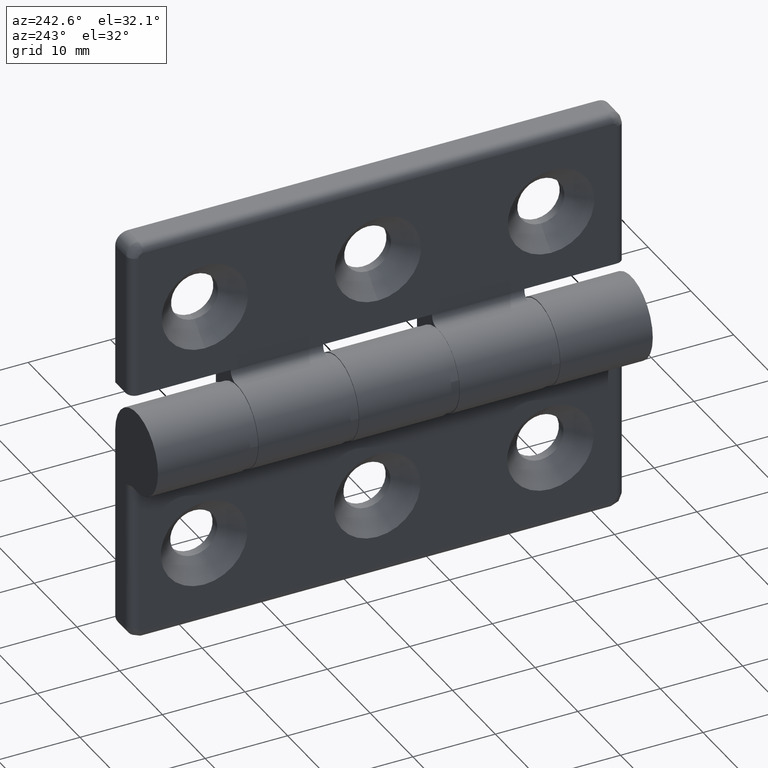
[diagram: clean part render]
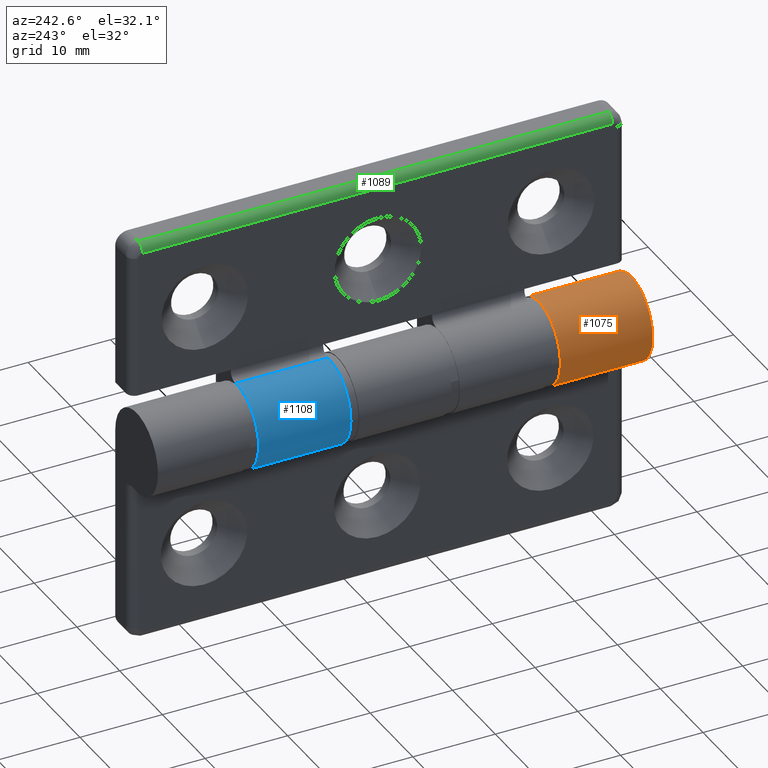
[diagram: same view with three faces highlighted in distinct colors, each labeled with its STEP entity id]
A machine part, auxiliary view with three faces highlighted in distinct colors.
Their STEP definitions:

[orange] entity #1075 — the highlighted cylindrical surface (partial cylindrical patch) has radius 5 mm, axis along (0, 1, 0).
#108=B_SPLINE_CURVE_WITH_KNOTS('',3,(#1638,#1639,#1640,#1641,#1642),
 .UNSPECIFIED.,.F.,.F.,(4,1,4),(1.24012537524974,1.25308954174523,1.34489635162472),
 .UNSPECIFIED.);
#144=FACE_OUTER_BOUND('',#220,.T.);
#220=EDGE_LOOP('',(#865,#866,#867,#868,#869));
#268=LINE('',#1586,#345);
#301=LINE('',#1829,#378);
#345=VECTOR('',#1249,10.2);
#378=VECTOR('',#1348,11.2);
#443=CIRCLE('',#1146,5.);
#452=CIRCLE('',#1168,5.);
#485=VERTEX_POINT('',#1583);
#486=VERTEX_POINT('',#1585);
#489=VERTEX_POINT('',#1627);
#521=VERTEX_POINT('',#1808);
#528=VERTEX_POINT('',#1827);
#585=EDGE_CURVE('',#485,#486,#268,.T.);
#589=EDGE_CURVE('',#489,#485,#108,.T.);
#635=EDGE_CURVE('',#489,#521,#443,.T.);
#645=EDGE_CURVE('',#521,#528,#301,.T.);
#657=EDGE_CURVE('',#528,#486,#452,.T.);
#865=ORIENTED_EDGE('',*,*,#589,.F.);
#866=ORIENTED_EDGE('',*,*,#635,.T.);
#867=ORIENTED_EDGE('',*,*,#645,.T.);
#868=ORIENTED_EDGE('',*,*,#657,.T.);
#869=ORIENTED_EDGE('',*,*,#585,.F.);
#1031=CYLINDRICAL_SURFACE('',#1170,5.);
#1075=ADVANCED_FACE('',(#144),#1031,.T.);
#1146=AXIS2_PLACEMENT_3D('',#1810,#1333,#1334);
#1168=AXIS2_PLACEMENT_3D('',#1858,#1390,#1391);
#1170=AXIS2_PLACEMENT_3D('',#1861,#1395,#1396);
#1249=DIRECTION('',(0.,1.,0.));
#1333=DIRECTION('center_axis',(0.,1.,0.));
#1334=DIRECTION('ref_axis',(-1.,0.,0.));
#1348=DIRECTION('',(0.,1.,0.));
#1390=DIRECTION('center_axis',(-6.54399919421063E-32,-1.,-1.26306652853828E-16));
#1391=DIRECTION('ref_axis',(-1.,0.,0.));
#1395=DIRECTION('center_axis',(0.,1.,0.));
#1396=DIRECTION('ref_axis',(-1.,0.,0.));
#1583=CARTESIAN_POINT('',(0.416666666666663,1.,-4.98260864295892));
#1585=CARTESIAN_POINT('',(0.416666666666663,11.2,-4.98260864295892));
#1586=CARTESIAN_POINT('',(0.416666666666663,0.,-4.98260864295892));
#1627=CARTESIAN_POINT('',(0.639957660359256,1.07813064031959E-14,-4.95887630345298));
#1638=CARTESIAN_POINT('Ctrl Pts',(0.639705543206425,0.000763227845710229,
-4.95856478545759));
#1639=CARTESIAN_POINT('Ctrl Pts',(0.621688516925641,0.0381111433284494,
-4.96087701461437));
#1640=CARTESIAN_POINT('Ctrl Pts',(0.484240872388109,0.345633137098082,-4.97779434108923));
#1641=CARTESIAN_POINT('Ctrl Pts',(0.416666666666663,0.693977300401685,-4.98260864295892));
#1642=CARTESIAN_POINT('Ctrl Pts',(0.416666666666664,1.,-4.98260864295892));
#1808=CARTESIAN_POINT('',(5.,0.,-1.53080849893419E-15));
#1810=CARTESIAN_POINT('Origin',(0.,0.,0.));
#1827=CARTESIAN_POINT('',(5.,11.2,-2.44249065417534E-15));
#1829=CARTESIAN_POINT('',(5.,0.,-2.44249065417534E-15));
#1858=CARTESIAN_POINT('Origin',(0.,11.2,0.));
#1861=CARTESIAN_POINT('Origin',(0.,0.,0.));

[blue] entity #1108 — the highlighted cylindrical surface (partial cylindrical patch) has radius 5 mm, axis along (-0, -1, 0).
#177=FACE_OUTER_BOUND('',#266,.T.);
#266=EDGE_LOOP('',(#1011,#1012,#1013,#1014));
#307=LINE('',#1881,#384);
#335=LINE('',#1991,#412);
#384=VECTOR('',#1422,11.2);
#412=VECTOR('',#1508,11.2);
#482=CIRCLE('',#1227,5.);
#483=CIRCLE('',#1232,5.);
#537=VERTEX_POINT('',#1874);
#540=VERTEX_POINT('',#1879);
#574=VERTEX_POINT('',#1988);
#575=VERTEX_POINT('',#1990);
#664=EDGE_CURVE('',#540,#537,#307,.T.);
#711=EDGE_CURVE('',#575,#574,#335,.T.);
#724=EDGE_CURVE('',#540,#575,#482,.T.);
#727=EDGE_CURVE('',#574,#537,#483,.T.);
#1011=ORIENTED_EDGE('',*,*,#664,.F.);
#1012=ORIENTED_EDGE('',*,*,#724,.T.);
#1013=ORIENTED_EDGE('',*,*,#711,.T.);
#1014=ORIENTED_EDGE('',*,*,#727,.T.);
#1045=CYLINDRICAL_SURFACE('',#1234,5.);
#1108=ADVANCED_FACE('',(#177),#1045,.T.);
#1227=AXIS2_PLACEMENT_3D('',#2021,#1545,#1546);
#1232=AXIS2_PLACEMENT_3D('',#2028,#1557,#1558);
#1234=AXIS2_PLACEMENT_3D('',#2031,#1562,#1563);
#1422=DIRECTION('',(0.,1.,0.));
#1508=DIRECTION('',(0.,1.,0.));
#1545=DIRECTION('center_axis',(7.52860087154054E-32,1.,1.45310588912962E-16));
#1546=DIRECTION('ref_axis',(-1.,0.,0.));
#1557=DIRECTION('center_axis',(0.,-1.,0.));
#1558=DIRECTION('ref_axis',(-1.,0.,0.));
#1562=DIRECTION('center_axis',(0.,1.,0.));
#1563=DIRECTION('ref_axis',(-1.,0.,0.));
#1874=CARTESIAN_POINT('',(0.416666666666663,23.4,-4.98260864295892));
#1879=CARTESIAN_POINT('',(0.416666666666663,12.2,-4.98260864295892));
#1881=CARTESIAN_POINT('',(0.416666666666663,0.,-4.98260864295892));
#1988=CARTESIAN_POINT('',(5.,23.4,-2.44249065417534E-15));
#1990=CARTESIAN_POINT('',(5.,12.2,-2.44249065417534E-15));
#1991=CARTESIAN_POINT('',(5.,0.,-2.44249065417534E-15));
#2021=CARTESIAN_POINT('Origin',(0.,12.2,0.));
#2028=CARTESIAN_POINT('Origin',(0.,23.4,0.));
#2031=CARTESIAN_POINT('Origin',(0.,0.,0.));

[green] entity #1089 — the highlighted cylindrical surface (edge-blend (fillet) strip) has radius 1 mm, axis along (-0, -1, 0).
#158=FACE_OUTER_BOUND('',#238,.T.);
#238=EDGE_LOOP('',(#928,#929,#930,#931));
#315=LINE('',#1900,#392);
#324=LINE('',#1965,#401);
#392=VECTOR('',#1434,57.);
#401=VECTOR('',#1485,57.);
#466=CIRCLE('',#1195,0.999999999999996);
#472=CIRCLE('',#1203,1.);
#548=VERTEX_POINT('',#1897);
#549=VERTEX_POINT('',#1899);
#560=VERTEX_POINT('',#1935);
#565=VERTEX_POINT('',#1959);
#673=EDGE_CURVE('',#549,#548,#315,.T.);
#687=EDGE_CURVE('',#560,#549,#466,.T.);
#696=EDGE_CURVE('',#548,#565,#472,.T.);
#698=EDGE_CURVE('',#565,#560,#324,.T.);
#928=ORIENTED_EDGE('',*,*,#696,.T.);
#929=ORIENTED_EDGE('',*,*,#698,.T.);
#930=ORIENTED_EDGE('',*,*,#687,.T.);
#931=ORIENTED_EDGE('',*,*,#673,.T.);
#1039=CYLINDRICAL_SURFACE('',#1205,1.);
#1089=ADVANCED_FACE('',(#158),#1039,.T.);
#1195=AXIS2_PLACEMENT_3D('',#1936,#1460,#1461);
#1203=AXIS2_PLACEMENT_3D('',#1962,#1479,#1480);
#1205=AXIS2_PLACEMENT_3D('',#1964,#1483,#1484);
#1434=DIRECTION('',(0.,1.,0.));
#1460=DIRECTION('center_axis',(0.,1.,0.));
#1461=DIRECTION('ref_axis',(0.,0.,-1.));
#1479=DIRECTION('center_axis',(0.,-1.,0.));
#1480=DIRECTION('ref_axis',(-1.,0.,0.));
#1483=DIRECTION('center_axis',(0.,1.,0.));
#1484=DIRECTION('ref_axis',(-0.707106781186549,0.,-0.707106781186546));
#1485=DIRECTION('',(0.,-1.,0.));
#1897=CARTESIAN_POINT('',(1.49999999999999,58.5,-24.));
#1899=CARTESIAN_POINT('',(1.49999999999999,1.5,-24.));
#1900=CARTESIAN_POINT('',(1.49999999999999,0.,-24.));
#1935=CARTESIAN_POINT('',(2.49999999999999,1.5,-25.));
#1936=CARTESIAN_POINT('Origin',(2.49999999999999,1.5,-24.));
#1959=CARTESIAN_POINT('',(2.49999999999999,58.5,-25.));
#1962=CARTESIAN_POINT('Origin',(2.49999999999999,58.5,-24.));
#1964=CARTESIAN_POINT('Origin',(2.49999999999999,0.,-24.));
#1965=CARTESIAN_POINT('',(2.49999999999999,0.,-25.));